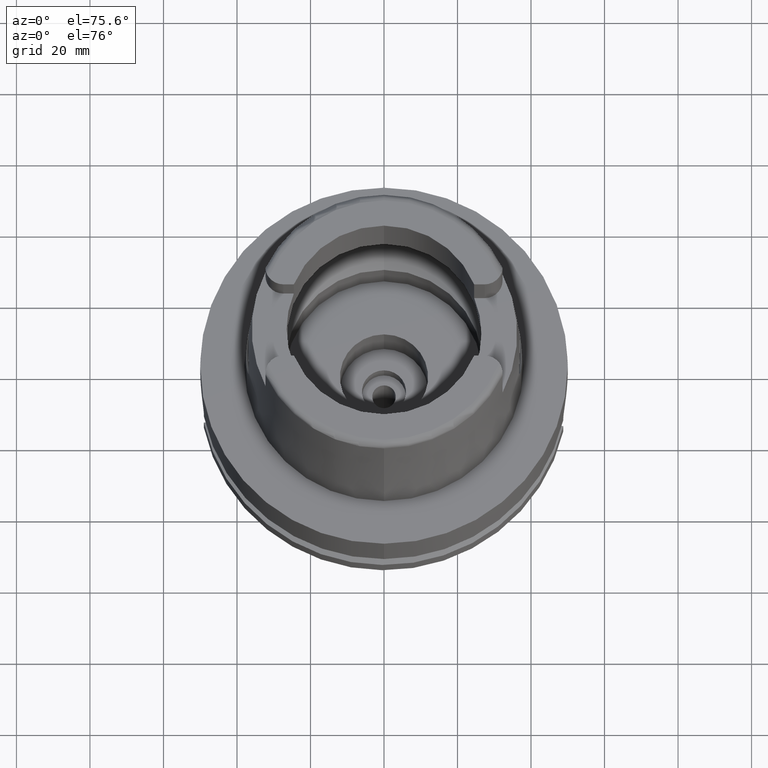
[diagram: clean part render]
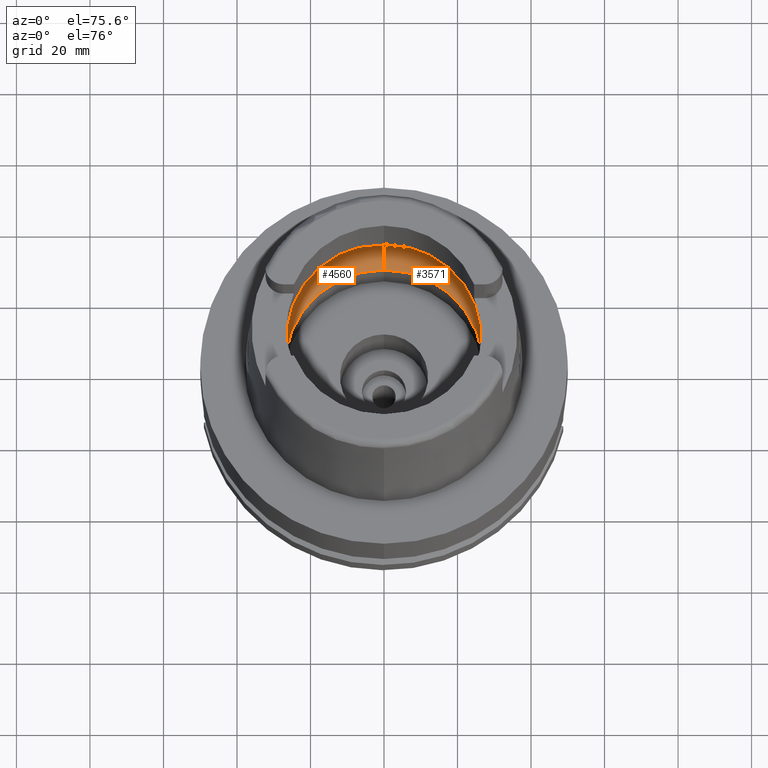
[diagram: same view with one multi-face feature highlighted, each face labeled with its STEP entity id]
A machine part, auxiliary view. The highlighted faces form ONE feature: a constant-radius fillet chain: 2 tangent blend faces with common blend radius 12 mm. The faces share edges in the B-rep.
Their STEP definitions:
[1] entity #4560 (Torus):
#29 = VERTEX_POINT ( 'NONE', #2095 ) ;
#84 = VERTEX_POINT ( 'NONE', #1733 ) ;
#135 = CARTESIAN_POINT ( 'NONE',  ( -31.40918884336000616, -2.390158196043999705, 9.496624327025999790 ) ) ;
#166 = CARTESIAN_POINT ( 'NONE',  ( -31.48971910754000447, -0.8697454018008697885, 8.999999999999998224 ) ) ;
#182 = DIRECTION ( 'NONE',  ( 0.0000000000000000000, 0.6166666666667049990, -0.7872243785746061429 ) ) ;
#196 = EDGE_LOOP ( 'NONE', ( #1399, #4194, #319, #1527, #4372, #4689, #4170 ) ) ;
#319 = ORIENTED_EDGE ( 'NONE', *, *, #2894, .F. ) ;
#330 = DIRECTION ( 'NONE',  ( 0.0000000000000000000, -0.6166666666667049990, -0.7872243785746061429 ) ) ;
#381 = CARTESIAN_POINT ( 'NONE',  ( -31.40918884336000616, 2.390158196043999705, 9.496624327025999790 ) ) ;
#447 = DIRECTION ( 'NONE',  ( 0.0000000000000000000, 0.0000000000000000000, 1.000000000000000000 ) ) ;
#455 = CARTESIAN_POINT ( 'NONE',  ( 0.0000000000000000000, 0.0000000000000000000, 9.496624327025999790 ) ) ;
#674 = VERTEX_POINT ( 'NONE', #2515 ) ;
#816 = CARTESIAN_POINT ( 'NONE',  ( 0.0000000000000000000, -19.50000000000000000, 9.496624327025999790 ) ) ;
#839 = CARTESIAN_POINT ( 'NONE',  ( -31.48971910754000447, 0.8697454016785111097, 9.000000000000001776 ) ) ;
#863 = EDGE_CURVE ( 'NONE', #674, #1416, #3704, .T. ) ;
#874 = VERTEX_POINT ( 'NONE', #2276 ) ;
#900 = CARTESIAN_POINT ( 'NONE',  ( -31.48971910754000447, 0.0000000000000000000, 9.000000000000000000 ) ) ;
#950 = CARTESIAN_POINT ( 'NONE',  ( 0.0000000000000000000, 19.50000000000000000, 9.496624327025999790 ) ) ;
#1137 = CARTESIAN_POINT ( 'NONE',  ( 0.0000000000000000000, 31.50000000000000000, 9.496624327025999790 ) ) ;
#1399 = ORIENTED_EDGE ( 'NONE', *, *, #1523, .F. ) ;
#1408 = TOROIDAL_SURFACE ( 'NONE', #4609, 19.50000000000000000, 12.00000000000000000 ) ;
#1416 = VERTEX_POINT ( 'NONE', #1137 ) ;
#1456 = DIRECTION ( 'NONE',  ( 1.000000000000000000, 0.0000000000000000000, 0.0000000000000000000 ) ) ;
#1523 = EDGE_CURVE ( 'NONE', #2778, #874, #4672, .T. ) ;
#1527 = ORIENTED_EDGE ( 'NONE', *, *, #1915, .T. ) ;
#1564 = CIRCLE ( 'NONE', #4400, 11.99999999999999822 ) ;
#1733 = CARTESIAN_POINT ( 'NONE',  ( 0.0000000000000000000, 26.89999999999999858, 0.04993178413034000257 ) ) ;
#1850 = CARTESIAN_POINT ( 'NONE',  ( -31.46287568614665986, -1.684656700029165899, 9.190219625035021878 ) ) ;
#1915 = EDGE_CURVE ( 'NONE', #84, #1416, #1564, .T. ) ;
#1929 = CARTESIAN_POINT ( 'NONE',  ( 0.0000000000000000000, 0.0000000000000000000, 9.496624327025999790 ) ) ;
#1947 = DIRECTION ( 'NONE',  ( 0.0000000000000000000, 1.000000000000000000, 0.0000000000000000000 ) ) ;
#2048 = AXIS2_PLACEMENT_3D ( 'NONE', #1929, #2769, #5467 ) ;
#2066 = VERTEX_POINT ( 'NONE', #3919 ) ;
#2095 = CARTESIAN_POINT ( 'NONE',  ( 0.0000000000000000000, -26.89999999999999858, 0.04993178413032000468 ) ) ;
#2112 = AXIS2_PLACEMENT_3D ( 'NONE', #4384, #447, #2168 ) ;
#2131 = B_SPLINE_CURVE_WITH_KNOTS ( 'NONE', 3,
 ( #900, #839, #4292, #381 ),
 .UNSPECIFIED., .F., .F.,
 ( 4, 4 ),
 ( 0.0000000000000000000, 1.000000000000000000 ),
 .UNSPECIFIED. ) ;
#2168 = DIRECTION ( 'NONE',  ( 0.0000000000000000000, 1.000000000000000000, 0.0000000000000000000 ) ) ;
#2231 = DIRECTION ( 'NONE',  ( 0.0000000000000000000, -1.000000000000000000, 0.0000000000000000000 ) ) ;
#2276 = CARTESIAN_POINT ( 'NONE',  ( -31.40918884336000616, -2.390158196043999705, 9.496624327025999790 ) ) ;
#2344 = DIRECTION ( 'NONE',  ( 0.0000000000000000000, 0.0000000000000000000, 1.000000000000000000 ) ) ;
#2479 = CIRCLE ( 'NONE', #4417, 11.99999999999999822 ) ;
#2512 = EDGE_CURVE ( 'NONE', #874, #2066, #5307, .T. ) ;
#2515 = CARTESIAN_POINT ( 'NONE',  ( -31.40918884336000616, 2.390158196043999705, 9.496624327025999790 ) ) ;
#2714 = CARTESIAN_POINT ( 'NONE',  ( -31.48971910754000447, 0.0000000000000000000, 9.000000000000000000 ) ) ;
#2769 = DIRECTION ( 'NONE',  ( 0.0000000000000000000, 0.0000000000000000000, -1.000000000000000000 ) ) ;
#2778 = VERTEX_POINT ( 'NONE', #3529 ) ;
#2809 = CARTESIAN_POINT ( 'NONE',  ( 0.0000000000000000000, 0.0000000000000000000, 9.496624327025999790 ) ) ;
#2894 = EDGE_CURVE ( 'NONE', #84, #29, #4591, .T. ) ;
#3187 = FACE_OUTER_BOUND ( 'NONE', #196, .T. ) ;
#3292 = EDGE_CURVE ( 'NONE', #2066, #674, #2131, .T. ) ;
#3529 = CARTESIAN_POINT ( 'NONE',  ( 0.0000000000000000000, -31.50000000000000000, 9.496624327025999790 ) ) ;
#3704 = CIRCLE ( 'NONE', #2048, 31.49999999999998934 ) ;
#3919 = CARTESIAN_POINT ( 'NONE',  ( -31.48971910754000447, 0.0000000000000000000, 9.000000000000000000 ) ) ;
#4041 = DIRECTION ( 'NONE',  ( 0.0000000000000000000, 0.0000000000000000000, -1.000000000000000000 ) ) ;
#4170 = ORIENTED_EDGE ( 'NONE', *, *, #2512, .F. ) ;
#4194 = ORIENTED_EDGE ( 'NONE', *, *, #5551, .F. ) ;
#4212 = AXIS2_PLACEMENT_3D ( 'NONE', #455, #4041, #2231 ) ;
#4231 = DIRECTION ( 'NONE',  ( -1.000000000000000000, 0.0000000000000000000, 0.0000000000000000000 ) ) ;
#4292 = CARTESIAN_POINT ( 'NONE',  ( -31.46287568614665986, 1.684656699916923683, 9.190219624986275093 ) ) ;
#4372 = ORIENTED_EDGE ( 'NONE', *, *, #863, .F. ) ;
#4384 = CARTESIAN_POINT ( 'NONE',  ( 0.0000000000000000000, 0.0000000000000000000, 0.04993178413032000468 ) ) ;
#4400 = AXIS2_PLACEMENT_3D ( 'NONE', #950, #1456, #182 ) ;
#4417 = AXIS2_PLACEMENT_3D ( 'NONE', #816, #4231, #330 ) ;
#4560 = ADVANCED_FACE ( 'NONE', ( #3187 ), #1408, .F. ) ;
#4591 = CIRCLE ( 'NONE', #2112, 26.89999999999999858 ) ;
#4609 = AXIS2_PLACEMENT_3D ( 'NONE', #2809, #2344, #1947 ) ;
#4672 = CIRCLE ( 'NONE', #4212, 31.50000000000000000 ) ;
#4689 = ORIENTED_EDGE ( 'NONE', *, *, #3292, .F. ) ;
#5307 = B_SPLINE_CURVE_WITH_KNOTS ( 'NONE', 3,
 ( #135, #1850, #166, #2714 ),
 .UNSPECIFIED., .F., .F.,
 ( 4, 4 ),
 ( 0.0000000000000000000, 1.000000000000000000 ),
 .UNSPECIFIED. ) ;
#5467 = DIRECTION ( 'NONE',  ( -0.9971171061384295209, 0.07587803796965221503, 0.0000000000000000000 ) ) ;
#5551 = EDGE_CURVE ( 'NONE', #29, #2778, #2479, .T. ) ;
[2] entity #3571 (Torus):
#12 = ORIENTED_EDGE ( 'NONE', *, *, #5551, .T. ) ;
#29 = VERTEX_POINT ( 'NONE', #2095 ) ;
#50 = AXIS2_PLACEMENT_3D ( 'NONE', #3382, #4692, #2508 ) ;
#77 = EDGE_CURVE ( 'NONE', #2977, #2426, #1712, .T. ) ;
#84 = VERTEX_POINT ( 'NONE', #1733 ) ;
#182 = DIRECTION ( 'NONE',  ( 0.0000000000000000000, 0.6166666666667049990, -0.7872243785746061429 ) ) ;
#330 = DIRECTION ( 'NONE',  ( 0.0000000000000000000, -0.6166666666667049990, -0.7872243785746061429 ) ) ;
#404 = EDGE_LOOP ( 'NONE', ( #5108, #1639, #2787, #4184, #12, #4919, #3898 ) ) ;
#816 = CARTESIAN_POINT ( 'NONE',  ( 0.0000000000000000000, -19.50000000000000000, 9.496624327025999790 ) ) ;
#837 = CARTESIAN_POINT ( 'NONE',  ( 31.46287568614665986, -1.684656699965325632, 9.190219625007294724 ) ) ;
#950 = CARTESIAN_POINT ( 'NONE',  ( 0.0000000000000000000, 19.50000000000000000, 9.496624327025999790 ) ) ;
#1008 = CARTESIAN_POINT ( 'NONE',  ( 0.0000000000000000000, 0.0000000000000000000, 9.496624327025999790 ) ) ;
#1046 = TOROIDAL_SURFACE ( 'NONE', #3326, 19.50000000000000000, 12.00000000000000000 ) ;
#1137 = CARTESIAN_POINT ( 'NONE',  ( 0.0000000000000000000, 31.50000000000000000, 9.496624327025999790 ) ) ;
#1251 = CARTESIAN_POINT ( 'NONE',  ( 0.0000000000000000000, 0.0000000000000000000, 9.496624327025999790 ) ) ;
#1377 = CARTESIAN_POINT ( 'NONE',  ( 31.40918884336000616, 2.390158196043999705, 9.496624327025999790 ) ) ;
#1416 = VERTEX_POINT ( 'NONE', #1137 ) ;
#1456 = DIRECTION ( 'NONE',  ( 1.000000000000000000, 0.0000000000000000000, 0.0000000000000000000 ) ) ;
#1479 = EDGE_CURVE ( 'NONE', #29, #84, #2930, .T. ) ;
#1564 = CIRCLE ( 'NONE', #4400, 11.99999999999999822 ) ;
#1628 = DIRECTION ( 'NONE',  ( 0.9971171061384295209, -0.07587803796965221503, 0.0000000000000000000 ) ) ;
#1639 = ORIENTED_EDGE ( 'NONE', *, *, #5573, .F. ) ;
#1706 = CARTESIAN_POINT ( 'NONE',  ( 31.48971910754000447, 0.0000000000000000000, 9.000000000000000000 ) ) ;
#1712 = B_SPLINE_CURVE_WITH_KNOTS ( 'NONE', 3,
 ( #4315, #5634, #3488, #1706 ),
 .UNSPECIFIED., .F., .F.,
 ( 4, 4 ),
 ( 0.0000000000000000000, 1.000000000000000000 ),
 .UNSPECIFIED. ) ;
#1727 = CARTESIAN_POINT ( 'NONE',  ( 0.0000000000000000000, 0.0000000000000000000, 0.04993178413033000362 ) ) ;
#1733 = CARTESIAN_POINT ( 'NONE',  ( 0.0000000000000000000, 26.89999999999999858, 0.04993178413034000257 ) ) ;
#1915 = EDGE_CURVE ( 'NONE', #84, #1416, #1564, .T. ) ;
#1936 = CARTESIAN_POINT ( 'NONE',  ( 31.48971910754000447, 0.0000000000000000000, 9.000000000000000000 ) ) ;
#2054 = EDGE_CURVE ( 'NONE', #2426, #5294, #3481, .T. ) ;
#2095 = CARTESIAN_POINT ( 'NONE',  ( 0.0000000000000000000, -26.89999999999999858, 0.04993178413032000468 ) ) ;
#2113 = DIRECTION ( 'NONE',  ( 0.0000000000000000000, 0.0000000000000000000, 1.000000000000000000 ) ) ;
#2160 = CARTESIAN_POINT ( 'NONE',  ( 31.40918884336000616, -2.390158196043999705, 9.496624327025999790 ) ) ;
#2426 = VERTEX_POINT ( 'NONE', #1936 ) ;
#2479 = CIRCLE ( 'NONE', #4417, 11.99999999999999822 ) ;
#2508 = DIRECTION ( 'NONE',  ( 0.0000000000000000000, 1.000000000000000000, 0.0000000000000000000 ) ) ;
#2734 = DIRECTION ( 'NONE',  ( 0.0000000000000000000, 1.000000000000000000, 0.0000000000000000000 ) ) ;
#2778 = VERTEX_POINT ( 'NONE', #3529 ) ;
#2787 = ORIENTED_EDGE ( 'NONE', *, *, #1915, .F. ) ;
#2930 = CIRCLE ( 'NONE', #5220, 26.89999999999999858 ) ;
#2977 = VERTEX_POINT ( 'NONE', #1377 ) ;
#3116 = EDGE_CURVE ( 'NONE', #5294, #2778, #4134, .T. ) ;
#3326 = AXIS2_PLACEMENT_3D ( 'NONE', #1251, #2113, #2734 ) ;
#3382 = CARTESIAN_POINT ( 'NONE',  ( 0.0000000000000000000, 0.0000000000000000000, 9.496624327025999790 ) ) ;
#3418 = CIRCLE ( 'NONE', #50, 31.50000000000000000 ) ;
#3481 = B_SPLINE_CURVE_WITH_KNOTS ( 'NONE', 3,
 ( #4319, #4746, #837, #2160 ),
 .UNSPECIFIED., .F., .F.,
 ( 4, 4 ),
 ( 0.0000000000000000000, 1.000000000000000000 ),
 .UNSPECIFIED. ) ;
#3482 = DIRECTION ( 'NONE',  ( 0.0000000000000000000, 0.0000000000000000000, 1.000000000000000000 ) ) ;
#3488 = CARTESIAN_POINT ( 'NONE',  ( 31.48971910753999026, 0.8697454017787721314, 9.000000000000001776 ) ) ;
#3529 = CARTESIAN_POINT ( 'NONE',  ( 0.0000000000000000000, -31.50000000000000000, 9.496624327025999790 ) ) ;
#3571 = ADVANCED_FACE ( 'NONE', ( #4027 ), #1046, .F. ) ;
#3898 = ORIENTED_EDGE ( 'NONE', *, *, #2054, .F. ) ;
#4007 = CARTESIAN_POINT ( 'NONE',  ( 31.40918884336000616, -2.390158196043999705, 9.496624327025999790 ) ) ;
#4027 = FACE_OUTER_BOUND ( 'NONE', #404, .T. ) ;
#4044 = AXIS2_PLACEMENT_3D ( 'NONE', #1008, #4491, #1628 ) ;
#4134 = CIRCLE ( 'NONE', #4044, 31.49999999999998934 ) ;
#4184 = ORIENTED_EDGE ( 'NONE', *, *, #1479, .F. ) ;
#4231 = DIRECTION ( 'NONE',  ( -1.000000000000000000, 0.0000000000000000000, 0.0000000000000000000 ) ) ;
#4315 = CARTESIAN_POINT ( 'NONE',  ( 31.40918884336000616, 2.390158196043999705, 9.496624327025999790 ) ) ;
#4319 = CARTESIAN_POINT ( 'NONE',  ( 31.48971910754000447, 0.0000000000000000000, 9.000000000000000000 ) ) ;
#4400 = AXIS2_PLACEMENT_3D ( 'NONE', #950, #1456, #182 ) ;
#4417 = AXIS2_PLACEMENT_3D ( 'NONE', #816, #4231, #330 ) ;
#4491 = DIRECTION ( 'NONE',  ( 0.0000000000000000000, 0.0000000000000000000, -1.000000000000000000 ) ) ;
#4692 = DIRECTION ( 'NONE',  ( 0.0000000000000000000, 0.0000000000000000000, -1.000000000000000000 ) ) ;
#4746 = CARTESIAN_POINT ( 'NONE',  ( 31.48971910753999026, -0.8697454017312684638, 8.999999999999998224 ) ) ;
#4919 = ORIENTED_EDGE ( 'NONE', *, *, #3116, .F. ) ;
#5108 = ORIENTED_EDGE ( 'NONE', *, *, #77, .F. ) ;
#5214 = DIRECTION ( 'NONE',  ( 0.0000000000000000000, -1.000000000000000000, 0.0000000000000000000 ) ) ;
#5220 = AXIS2_PLACEMENT_3D ( 'NONE', #1727, #3482, #5214 ) ;
#5294 = VERTEX_POINT ( 'NONE', #4007 ) ;
#5551 = EDGE_CURVE ( 'NONE', #29, #2778, #2479, .T. ) ;
#5573 = EDGE_CURVE ( 'NONE', #1416, #2977, #3418, .T. ) ;
#5634 = CARTESIAN_POINT ( 'NONE',  ( 31.46287568614665986, 1.684656700008886121, 9.190219625026216477 ) ) ;